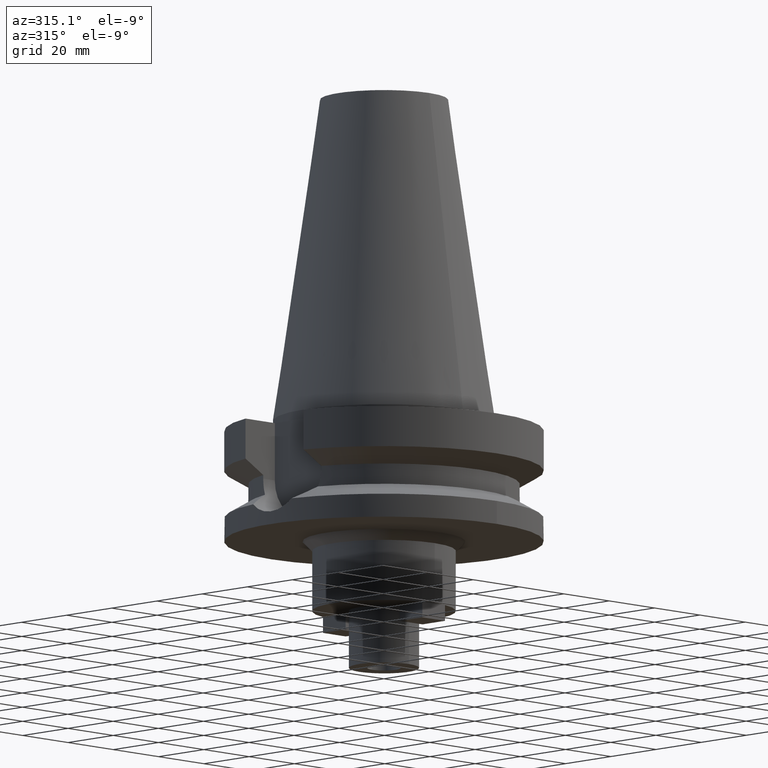
[diagram: clean part render]
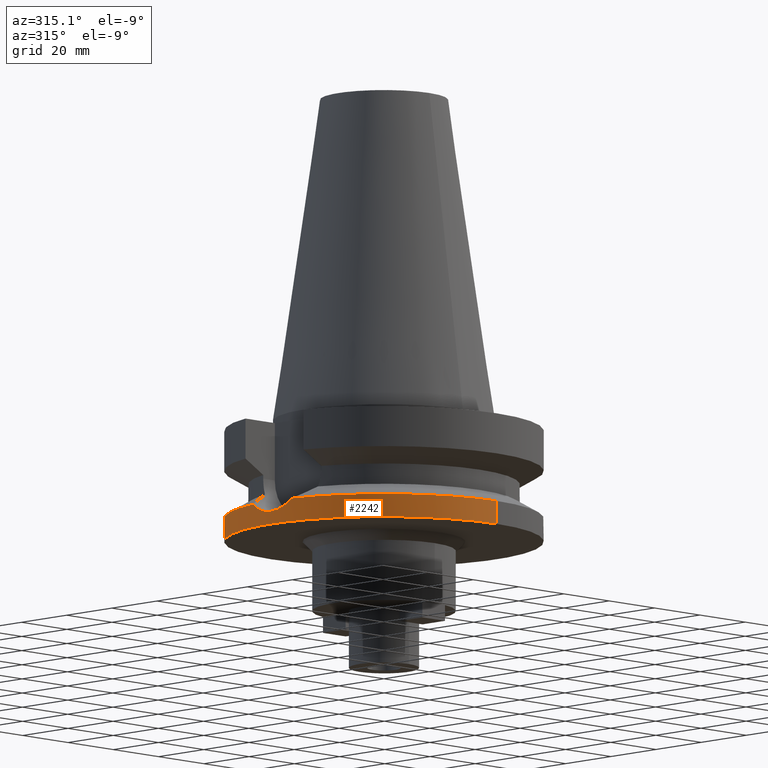
[diagram: same view with one face highlighted and labeled with its STEP entity id]
A machine part, auxiliary view. The second image highlights one B-rep face of the part: STEP entity #2242.
In plain terms, the highlighted cylindrical surface (partial cylindrical patch) has radius 50 mm, axis along (0, 0, -1).
Its self-contained STEP definition (entity closure, byte-faithful):
#636=CARTESIAN_POINT('',(0.E0,2.581432987923E-14,-3.8E1));
#637=DIRECTION('',(0.E0,0.E0,1.E0));
#638=DIRECTION('',(0.E0,1.E0,0.E0));
#639=AXIS2_PLACEMENT_3D('',#636,#637,#638);
#682=DIRECTION('',(0.E0,2.152361642122E-14,-1.E0));
#683=VECTOR('',#682,7.262692235730E0);
#684=CARTESIAN_POINT('',(0.E0,5.E1,-3.073730776427E1));
#685=LINE('',#684,#683);
#703=CARTESIAN_POINT('',(-4.926250064874E1,-8.556052234130E0,
-3.073730776427E1));
#747=CARTESIAN_POINT('',(0.E0,0.E0,-3.073730776427E1));
#748=DIRECTION('',(0.E0,0.E0,-1.E0));
#749=DIRECTION('',(0.E0,-1.E0,0.E0));
#750=AXIS2_PLACEMENT_3D('',#747,#748,#749);
#769=CARTESIAN_POINT('',(-4.926250064874E1,8.556052234130E0,-3.073730776427E1));
#770=CARTESIAN_POINT('',(-4.938278898764E1,7.863477643558E0,-3.135538580230E1));
#771=CARTESIAN_POINT('',(-4.960869740012E1,6.390114132622E0,-3.240533988970E1));
#772=CARTESIAN_POINT('',(-4.986719796732E1,3.931516378644E0,-3.348106431614E1));
#773=CARTESIAN_POINT('',(-5.000684926582E1,1.305144887466E0,-3.402687902100E1));
#774=CARTESIAN_POINT('',(-5.000469530104E1,-1.379344897737E0,
-3.401862215753E1));
#775=CARTESIAN_POINT('',(-4.986224107759E1,-3.989258981499E0,
-3.346117721398E1));
#776=CARTESIAN_POINT('',(-4.960406022977E1,-6.422411304650E0,
-3.238468552909E1));
#777=CARTESIAN_POINT('',(-4.938092684349E1,-7.874199162617E0,
-3.134581753983E1));
#778=CARTESIAN_POINT('',(-4.926250064874E1,-8.556052234130E0,
-3.073730776427E1));
#783=DIRECTION('',(0.E0,-2.250196262219E-14,-1.E0));
#784=VECTOR('',#783,7.262692235730E0);
#785=CARTESIAN_POINT('',(0.E0,-5.E1,-3.073730776427E1));
#786=LINE('',#785,#784);
#795=CARTESIAN_POINT('',(-4.926250064874E1,8.556052234130E0,-3.073730776427E1));
#800=CARTESIAN_POINT('',(0.E0,0.E0,-3.073730776427E1));
#801=DIRECTION('',(0.E0,0.E0,-1.E0));
#802=DIRECTION('',(-9.852500129747E-1,1.711210446826E-1,0.E0));
#803=AXIS2_PLACEMENT_3D('',#800,#801,#802);
#1438=CARTESIAN_POINT('',(0.E0,-5.E1,-3.8E1));
#1439=CARTESIAN_POINT('',(0.E0,5.E1,-3.8E1));
#1440=VERTEX_POINT('',#1438);
#1441=VERTEX_POINT('',#1439);
#1445=CARTESIAN_POINT('',(0.E0,5.E1,-3.073730776427E1));
#1446=VERTEX_POINT('',#1445);
#1447=CARTESIAN_POINT('',(0.E0,-5.E1,-3.073730776427E1));
#1448=VERTEX_POINT('',#1447);
#1460=VERTEX_POINT('',#703);
#1465=VERTEX_POINT('',#795);
#2228=CARTESIAN_POINT('',(0.E0,2.581432987923E-14,1.1079E2));
#2229=DIRECTION('',(0.E0,0.E0,-1.E0));
#2230=DIRECTION('',(0.E0,-1.E0,0.E0));
#2231=AXIS2_PLACEMENT_3D('',#2228,#2229,#2230);
#2232=CYLINDRICAL_SURFACE('',#2231,5.E1);
#2233=ORIENTED_EDGE('',*,*,#2209,.T.);
#2234=ORIENTED_EDGE('',*,*,#2198,.F.);
#2235=ORIENTED_EDGE('',*,*,#2152,.T.);
#2236=ORIENTED_EDGE('',*,*,#2129,.F.);
#2237=ORIENTED_EDGE('',*,*,#2149,.F.);
#2239=ORIENTED_EDGE('',*,*,#2238,.F.);
#2240=EDGE_LOOP('',(#2233,#2234,#2235,#2236,#2237,#2239));
#2241=FACE_OUTER_BOUND('',#2240,.F.);
#640=CIRCLE('',#639,5.E1);
#751=CIRCLE('',#750,5.E1);
#779=B_SPLINE_CURVE_WITH_KNOTS('',3,(#769,#770,#771,#772,#773,#774,#775,#776,
#777,#778),.UNSPECIFIED.,.F.,.F.,(4,1,1,1,1,1,1,4),(0.E0,1.428571428571E-1,
2.857142857143E-1,4.285714285714E-1,5.714285714286E-1,7.142857142857E-1,
8.571428571429E-1,1.E0),.UNSPECIFIED.);
#804=CIRCLE('',#803,5.E1);
#2129=EDGE_CURVE('',#1441,#1440,#640,.T.);
#2149=EDGE_CURVE('',#1446,#1441,#685,.T.);
#2152=EDGE_CURVE('',#1448,#1440,#786,.T.);
#2198=EDGE_CURVE('',#1448,#1460,#751,.T.);
#2209=EDGE_CURVE('',#1465,#1460,#779,.T.);
#2238=EDGE_CURVE('',#1465,#1446,#804,.T.);
#2242=ADVANCED_FACE('',(#2241),#2232,.T.);